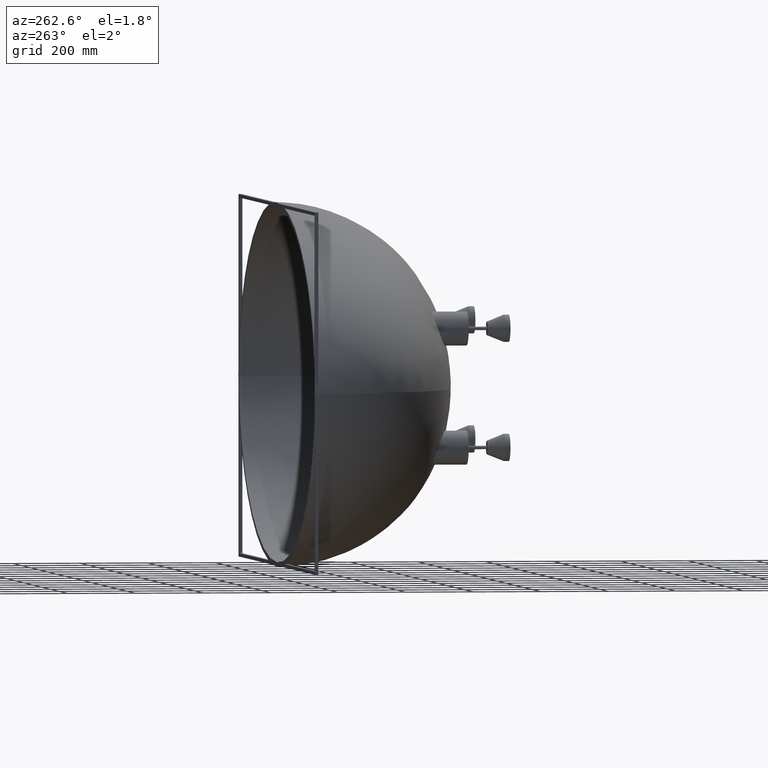
[diagram: clean part render]
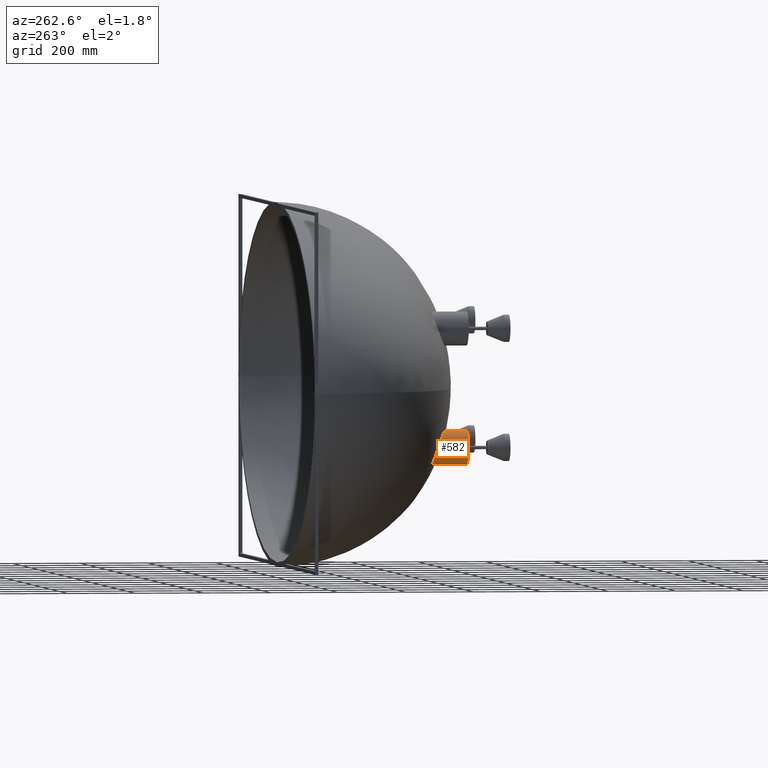
[diagram: same view with one face highlighted and labeled with its STEP entity id]
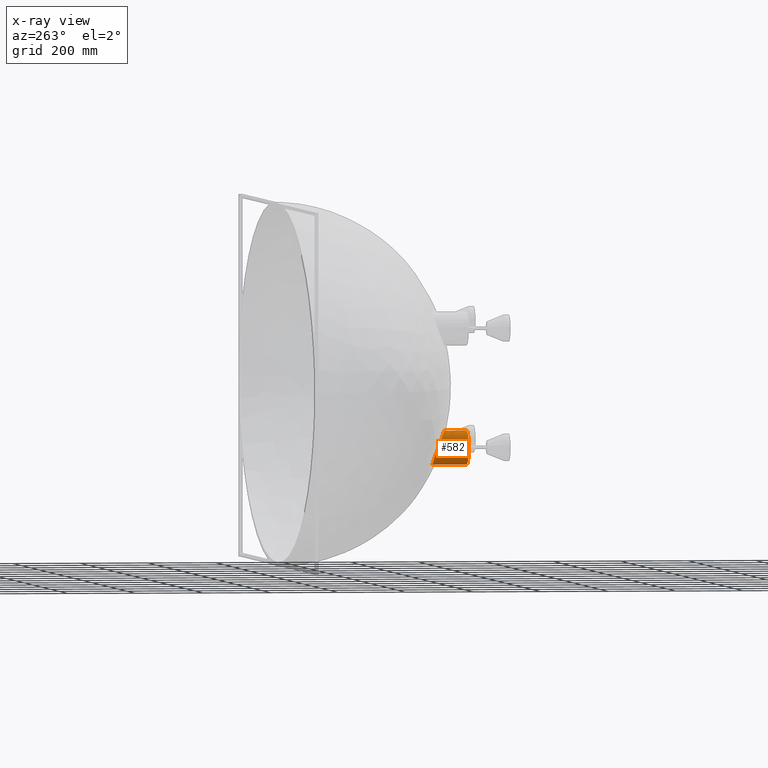
[diagram: x-ray of the same camera — body ghosted, the highlighted face saturated]
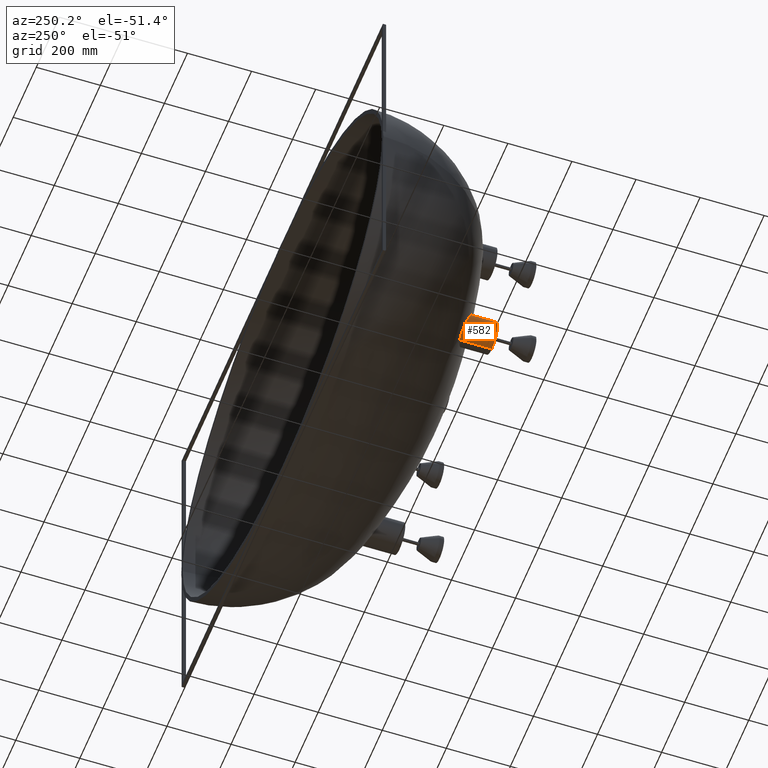
[diagram: same view with one face highlighted and labeled with its STEP entity id]
A machine part, auxiliary view. The second image highlights one B-rep face of the part: STEP entity #582.
The next image is the same camera in x-ray: the body ghosted, the highlighted face saturated — about 0% of this face is hidden behind the body in this view.
A second angle (auxiliary view) of the same face is appended — the face is thin or edge-on in the first view.
In plain terms, the highlighted cylindrical surface (edge-blend (fillet) strip) has radius 50 mm, axis along (-0, -1, -0).
Its self-contained STEP definition (entity closure, byte-faithful):
#5 = CARTESIAN_POINT ( 'NONE',  ( -403.3541144531327500, -409.2213873399841800, -224.9159172404904700 ) ) ;
#15 = CARTESIAN_POINT ( 'NONE',  ( -399.9999999999999400, 500000.0000000000600, -124.9999999999999100 ) ) ;
#74 = CARTESIAN_POINT ( 'NONE',  ( -449.5348535823604800, -422.2432582430382100, -167.4934777877011200 ) ) ;
#441 = CARTESIAN_POINT ( 'NONE',  ( -450.0236714699921700, -419.2768099478530000, -175.4009765998077100 ) ) ;
#498 = CARTESIAN_POINT ( 'NONE',  ( -425.8086755540852600, -407.3207434095115800, -217.8579696757358300 ) ) ;
#582 = ADVANCED_FACE ( 'NONE', ( #18733 ), #16408, .T. ) ;
#764 = CARTESIAN_POINT ( 'NONE',  ( -447.9134287856935500, -414.2894048929276200, -189.6594013261783100 ) ) ;
#789 = CARTESIAN_POINT ( 'NONE',  ( -448.6944169281655400, -423.7661552703064600, -163.6209903891929400 ) ) ;
#909 = CARTESIAN_POINT ( 'NONE',  ( -403.3429455267045100, -444.7478234680203900, -124.9999999999997600 ) ) ;
#1197 = CARTESIAN_POINT ( 'NONE',  ( -408.3898804630277400, -408.3613593964986400, -224.2983538904427100 ) ) ;
#1600 = AXIS2_PLACEMENT_3D ( 'NONE', #13198, #1757, #18363 ) ;
#1685 = DIRECTION ( 'NONE',  ( -0.0000000000000000000, -1.000000000000000000, -0.0000000000000000000 ) ) ;
#1757 = DIRECTION ( 'NONE',  ( -0.0000000000000000000, -1.000000000000000000, -0.0000000000000000000 ) ) ;
#1946 = CARTESIAN_POINT ( 'NONE',  ( -416.2644979231454300, -441.4859704583440100, -127.6905523097093000 ) ) ;
#2114 = EDGE_CURVE ( 'NONE', #16300, #2224, #4892, .T. ) ;
#2224 = VERTEX_POINT ( 'NONE', #17931 ) ;
#2278 = CARTESIAN_POINT ( 'NONE',  ( -448.0960337555685600, -424.6862820877117900, -161.3103774789843800 ) ) ;
#2886 = CARTESIAN_POINT ( 'NONE',  ( -423.5794486741761500, -407.2689854550126300, -219.0991261236259800 ) ) ;
#2929 = CARTESIAN_POINT ( 'NONE',  ( -445.1582718997739800, -412.1422019448200400, -196.4804897986981000 ) ) ;
#3382 = CARTESIAN_POINT ( 'NONE',  ( -400.0000000000000000, -445.3990864813991400, -125.0000000000000900 ) ) ;
#3428 = CARTESIAN_POINT ( 'NONE',  ( -413.1013757390448400, -442.3677697600484200, -126.7398521886125300 ) ) ;
#3640 = CARTESIAN_POINT ( 'NONE',  ( -433.2590094337950300, -408.0793166572779000, -212.3436945574360900 ) ) ;
#3718 = ORIENTED_EDGE ( 'NONE', *, *, #16035, .F. ) ;
#3777 = CARTESIAN_POINT ( 'NONE',  ( -435.7153647886232200, -408.5480075741909900, -210.0017625729266800 ) ) ;
#4618 = CARTESIAN_POINT ( 'NONE',  ( -399.9999999999998900, -409.9416649304542400, -225.0000000000000300 ) ) ;
#4892 = B_SPLINE_CURVE_WITH_KNOTS ( 'NONE', 3,
 ( #17647, #909, #20724, #20123, #18452, #3428, #18278, #1946, #12345, #18311, #8491, #10183, #8573, #8647, #11256, #19469, #16774, #20780, #16188, #18798, #10105, #5566, #2278, #20358, #789, #74, #12022, #441, #8875, #13800, #9873, #20192, #764, #18521, #7825, #19227, #2929, #17717, #5516, #9963, #6822, #3777, #9530, #7049, #3640, #15524, #15132, #5132, #498, #2886, #5490, #7869, #16750, #8437, #10124, #13222, #1197, #20864, #8535, #5, #9673, #4618 ),
 .UNSPECIFIED., .F., .F.,
 ( 4, 2, 2, 2, 2, 2, 2, 2, 2, 2, 2, 2, 2, 2, 2, 2, 2, 2, 2, 2, 2, 2, 2, 2, 2, 2, 2, 2, 2, 2, 4 ),
 ( 0.1631274440204797900, 0.1732664217767514400, 0.1758011662158193200, 0.1783359106548871900, 0.1834053995330230700, 0.1935443772892950800, 0.2036833550455670600, 0.2087528439237029700, 0.2138223328018388500, 0.2239613105581106100, 0.2290307994362464900, 0.2315655438753145300, 0.2341002883143825100, 0.2442392660706549100, 0.2493087549487911500, 0.2543782438269274200, 0.2645172215831999000, 0.2670519660222679900, 0.2695867104613362000, 0.2746561993394725000, 0.2847951770957451400, 0.2873299215348134000, 0.2898646659738817200, 0.2949341548520181800, 0.3000036437301546500, 0.3025383881692228500, 0.3050731326082910500, 0.3152121103645637000, 0.3177468548036319100, 0.3202815992427001100, 0.3253510881208365200 ),
 .UNSPECIFIED. ) ;
#5132 = CARTESIAN_POINT ( 'NONE',  ( -427.2423135471358900, -407.3972243247460500, -216.9606919045032800 ) ) ;
#5490 = CARTESIAN_POINT ( 'NONE',  ( -422.8232192858056400, -407.2622446397097600, -219.4953507711190900 ) ) ;
#5516 = CARTESIAN_POINT ( 'NONE',  ( -443.2546682078927900, -411.0580510786251700, -200.1344486778143900 ) ) ;
#5527 = EDGE_CURVE ( 'NONE', #10760, #21037, #21343, .T. ) ;
#5566 = CARTESIAN_POINT ( 'NONE',  ( -447.8706186526908900, -424.9954906794057500, -160.5417842633057700 ) ) ;
#5593 = VECTOR ( 'NONE', #16902, 1000.000000000000000 ) ;
#5972 = DIRECTION ( 'NONE',  ( 0.0000000000000000000, 0.0000000000000000000, 1.000000000000000000 ) ) ;
#6488 = CARTESIAN_POINT ( 'NONE',  ( -399.9999999999999400, -510.0000000000000000, -225.0000000000000600 ) ) ;
#6822 = CARTESIAN_POINT ( 'NONE',  ( -438.6144595487606400, -409.2216265587154000, -206.9420437181499300 ) ) ;
#7049 = CARTESIAN_POINT ( 'NONE',  ( -433.8862228869809300, -408.1867350140323700, -211.7755890078827600 ) ) ;
#7825 = CARTESIAN_POINT ( 'NONE',  ( -446.1648816833209700, -412.8390299804921100, -194.2218468867704900 ) ) ;
#7869 = CARTESIAN_POINT ( 'NONE',  ( -421.2837682506422500, -407.2705387282891300, -220.2519257917920800 ) ) ;
#8437 = CARTESIAN_POINT ( 'NONE',  ( -416.5806410808025900, -407.4148097584620700, -222.2941758791625700 ) ) ;
#8491 = CARTESIAN_POINT ( 'NONE',  ( -425.1650036380377700, -438.6176022955018500, -131.6715210875935000 ) ) ;
#8535 = CARTESIAN_POINT ( 'NONE',  ( -405.8730459415330600, -408.7667842123833000, -224.6610466140181500 ) ) ;
#8573 = CARTESIAN_POINT ( 'NONE',  ( -433.0568966994045500, -435.3981928306698100, -137.3512384307553600 ) ) ;
#8647 = CARTESIAN_POINT ( 'NONE',  ( -436.4460556985498600, -433.7008515051704800, -140.7329321243932200 ) ) ;
#8875 = CARTESIAN_POINT ( 'NONE',  ( -449.9859603355579900, -418.6921494152939000, -177.0020982001690600 ) ) ;
#9299 = ORIENTED_EDGE ( 'NONE', *, *, #10528, .T. ) ;
#9530 = CARTESIAN_POINT ( 'NONE',  ( -435.1145961690105500, -408.4210649968724200, -210.6045669024376500 ) ) ;
#9673 = CARTESIAN_POINT ( 'NONE',  ( -401.6742913825017400, -409.5633362885257000, -225.0000000000000300 ) ) ;
#9836 = CARTESIAN_POINT ( 'NONE',  ( -399.9999999999999400, 500000.0000000000600, -225.0000000000000600 ) ) ;
#9873 = CARTESIAN_POINT ( 'NONE',  ( -449.5591527876382000, -416.9722286516221200, -181.8161450191615000 ) ) ;
#9963 = CARTESIAN_POINT ( 'NONE',  ( -440.6358639030414700, -409.8897545330976300, -204.3181495545644900 ) ) ;
#10105 = CARTESIAN_POINT ( 'NONE',  ( -447.1423672180072800, -425.9196807138596900, -158.2625646228826200 ) ) ;
#10124 = CARTESIAN_POINT ( 'NONE',  ( -413.3565557247358100, -407.6885612287997000, -223.3011713336688300 ) ) ;
#10183 = CARTESIAN_POINT ( 'NONE',  ( -430.5797424276361200, -436.4927721418820900, -135.3072570105725600 ) ) ;
#10185 = DIRECTION ( 'NONE',  ( 0.0000000000000000000, 1.000000000000000000, 0.0000000000000000000 ) ) ;
#10528 = EDGE_CURVE ( 'NONE', #2224, #10760, #19179, .T. ) ;
#10760 = VERTEX_POINT ( 'NONE', #6488 ) ;
#11256 = CARTESIAN_POINT ( 'NONE',  ( -437.5209588020748000, -433.1257814843718800, -141.9131696453015600 ) ) ;
#11360 = ORIENTED_EDGE ( 'NONE', *, *, #2114, .T. ) ;
#12022 = CARTESIAN_POINT ( 'NONE',  ( -449.9102610896710000, -421.0447184125421200, -170.6319573896388400 ) ) ;
#12345 = CARTESIAN_POINT ( 'NONE',  ( -417.8024626540728300, -441.0294399052278900, -128.2483031616146700 ) ) ;
#13198 = CARTESIAN_POINT ( 'NONE',  ( -399.9999999999999400, 500000.0000000000600, -175.0000000000000000 ) ) ;
#13222 = CARTESIAN_POINT ( 'NONE',  ( -409.2220538138789700, -408.2404236130872200, -224.1494279648140100 ) ) ;
#13800 = CARTESIAN_POINT ( 'NONE',  ( -449.7528010659333400, -417.5356395225315400, -180.2214379211816300 ) ) ;
#15132 = CARTESIAN_POINT ( 'NONE',  ( -430.0073877136278500, -407.6300241845623900, -215.0299886973394300 ) ) ;
#15461 = ORIENTED_EDGE ( 'NONE', *, *, #5527, .T. ) ;
#15524 = CARTESIAN_POINT ( 'NONE',  ( -431.3388183167354600, -407.7863502322007300, -213.9965561732834400 ) ) ;
#16035 = EDGE_CURVE ( 'NONE', #16300, #21037, #19525, .T. ) ;
#16188 = CARTESIAN_POINT ( 'NONE',  ( -444.7206601964242600, -428.3590251916339800, -152.4154042563470700 ) ) ;
#16300 = VERTEX_POINT ( 'NONE', #3382 ) ;
#16408 = CYLINDRICAL_SURFACE ( 'NONE', #1600, 50.00000000000007100 ) ;
#16525 = EDGE_LOOP ( 'NONE', ( #3718, #11360, #9299, #15461 ) ) ;
#16750 = CARTESIAN_POINT ( 'NONE',  ( -420.5025056305708500, -407.2856416648492100, -220.6111368915492500 ) ) ;
#16774 = CARTESIAN_POINT ( 'NONE',  ( -440.5268351769897200, -431.3574700360201200, -145.6721746801263500 ) ) ;
#16867 = CARTESIAN_POINT ( 'NONE',  ( -399.9999999999999400, -510.0000000000000000, -175.0000000000000000 ) ) ;
#16902 = DIRECTION ( 'NONE',  ( -0.0000000000000000000, -1.000000000000000000, -0.0000000000000000000 ) ) ;
#17647 = CARTESIAN_POINT ( 'NONE',  ( -400.0000000000000000, -445.3990864813991400, -125.0000000000000900 ) ) ;
#17717 = CARTESIAN_POINT ( 'NONE',  ( -444.0581220310183400, -411.4754398413838900, -198.6982221899320400 ) ) ;
#17931 = CARTESIAN_POINT ( 'NONE',  ( -399.9999999999998900, -409.9416649304542400, -225.0000000000000300 ) ) ;
#18278 = CARTESIAN_POINT ( 'NONE',  ( -413.9007792263365700, -442.1495770832651700, -126.9640991521575900 ) ) ;
#18311 = CARTESIAN_POINT ( 'NONE',  ( -422.3064736277679000, -439.6168093942061400, -130.1333467978111300 ) ) ;
#18363 = DIRECTION ( 'NONE',  ( 0.0000000000000000000, 0.0000000000000000000, -1.000000000000000000 ) ) ;
#18452 = CARTESIAN_POINT ( 'NONE',  ( -411.4935193231364100, -442.7942916848547300, -126.3318694975728000 ) ) ;
#18521 = CARTESIAN_POINT ( 'NONE',  ( -446.4728287692385600, -413.0771855341494100, -193.4645161123376100 ) ) ;
#18733 = FACE_OUTER_BOUND ( 'NONE', #16525, .T. ) ;
#18798 = CARTESIAN_POINT ( 'NONE',  ( -446.5875439994586000, -426.5320007848793000, -156.7763588318474300 ) ) ;
#19179 = LINE ( 'NONE', #9836, #5593 ) ;
#19227 = CARTESIAN_POINT ( 'NONE',  ( -445.5080832252976400, -412.3717910680292700, -195.7289666827089400 ) ) ;
#19469 = CARTESIAN_POINT ( 'NONE',  ( -439.5598501751729800, -431.9552650564945100, -144.3800890519673600 ) ) ;
#19525 = LINE ( 'NONE', #15, #21090 ) ;
#20123 = CARTESIAN_POINT ( 'NONE',  ( -410.6863610823962200, -443.0023140316493500, -126.1483368399307900 ) ) ;
#20192 = CARTESIAN_POINT ( 'NONE',  ( -448.7516170090557900, -415.3269573612885800, -186.5567153986429500 ) ) ;
#20358 = CARTESIAN_POINT ( 'NONE',  ( -448.5076142284906400, -424.0719943156156000, -162.8490498460151900 ) ) ;
#20610 = CARTESIAN_POINT ( 'NONE',  ( -399.9999999999999400, -510.0000000000000000, -124.9999999999999100 ) ) ;
#20629 = AXIS2_PLACEMENT_3D ( 'NONE', #16867, #10185, #5972 ) ;
#20724 = CARTESIAN_POINT ( 'NONE',  ( -406.6346702793503600, -444.0169025649386800, -125.3319614108292800 ) ) ;
#20780 = CARTESIAN_POINT ( 'NONE',  ( -443.2079025389039100, -429.5637372599607600, -149.6374293887192600 ) ) ;
#20864 = CARTESIAN_POINT ( 'NONE',  ( -406.7148713909638800, -408.6245937813892500, -224.5542964100392300 ) ) ;
#21037 = VERTEX_POINT ( 'NONE', #20610 ) ;
#21090 = VECTOR ( 'NONE', #1685, 1000.000000000000000 ) ;
#21343 = CIRCLE ( 'NONE', #20629, 50.00000000000007100 ) ;